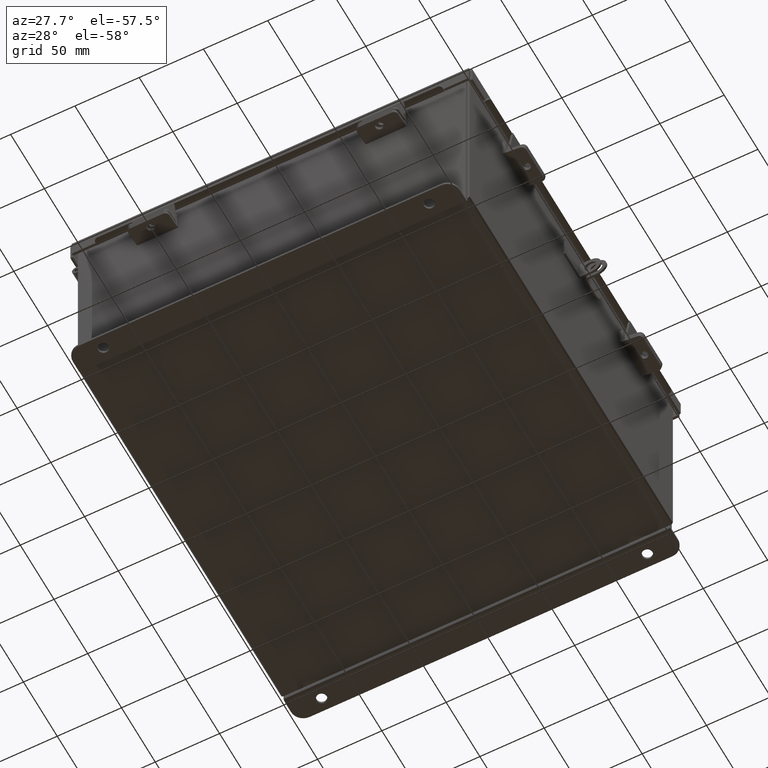
[diagram: clean part render]
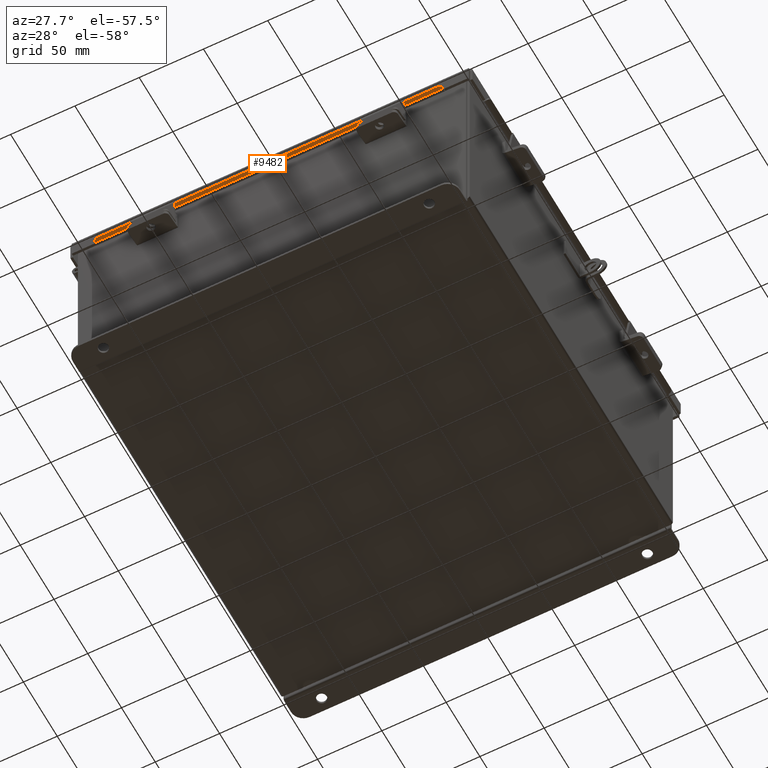
[diagram: same view with one face highlighted and labeled with its STEP entity id]
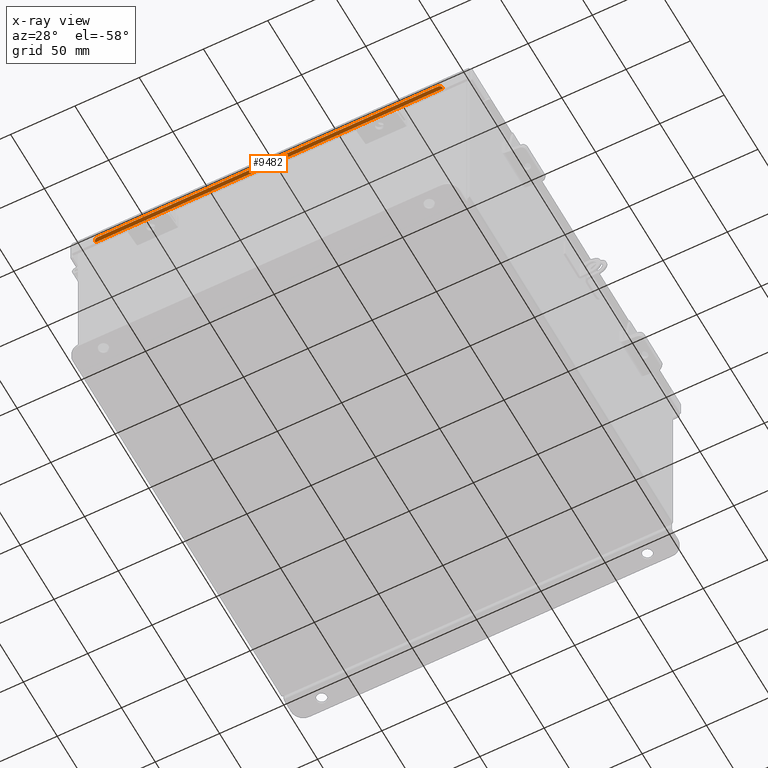
[diagram: x-ray of the same camera — body ghosted, the highlighted face saturated]
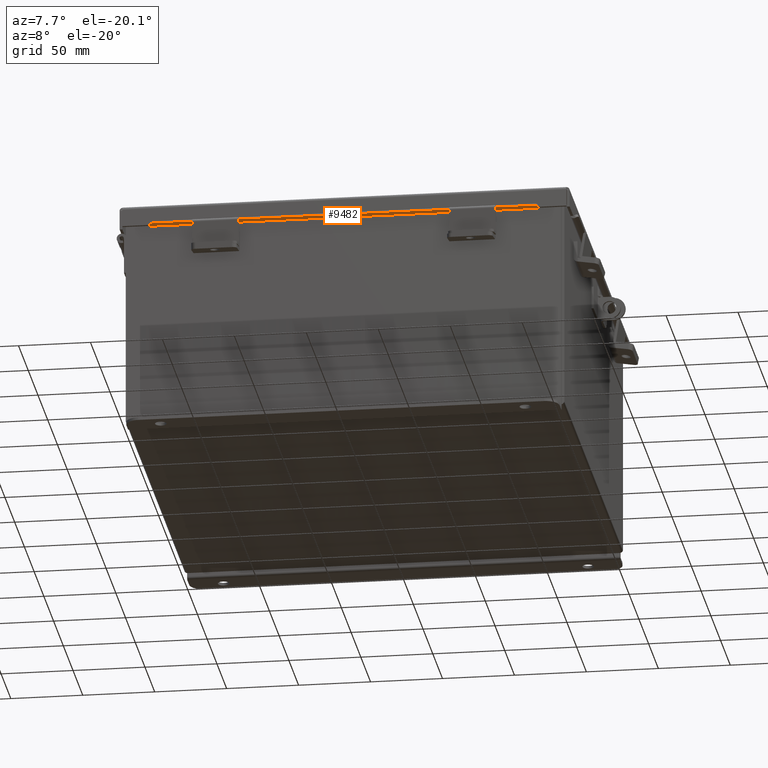
[diagram: same view with one face highlighted and labeled with its STEP entity id]
A machine part, auxiliary view. The second image highlights one B-rep face of the part: STEP entity #9482.
The next image is the same camera in x-ray: the body ghosted, the highlighted face saturated — about 0% of this face is hidden behind the body in this view.
A second angle (auxiliary view) of the same face is appended — the face is thin or edge-on in the first view.
In plain terms, the highlighted planar face has unit normal (-0, 0.5, 0.866).
Its self-contained STEP definition (entity closure, byte-faithful):
#93 = CARTESIAN_POINT ( 'NONE',  ( 5.224478932188133300, -6.298056350946112900, 0.4916841953253935400 ) ) ;
#153 = VECTOR ( 'NONE', #4758, 39.37007874015748900 ) ;
#279 = LINE ( 'NONE', #1236, #16996 ) ;
#314 = CARTESIAN_POINT ( 'NONE',  ( -5.324478932188134700, -6.207100000000004900, 0.5441978690286369800 ) ) ;
#856 = EDGE_CURVE ( 'NONE', #10894, #8749, #976, .T. ) ;
#976 = LINE ( 'NONE', #2634, #153 ) ;
#1031 = CARTESIAN_POINT ( 'NONE',  ( 5.324478932188133000, -6.211453810567669500, 0.5416841953253935800 ) ) ;
#1121 = DIRECTION ( 'NONE',  ( 2.909060459240741300E-017, -0.5000000000000038900, 0.8660254037844364900 ) ) ;
#1236 = CARTESIAN_POINT ( 'NONE',  ( 1.021848359461302800E-016, -6.207100000000004100, 0.5441978690286373200 ) ) ;
#1242 = DIRECTION ( 'NONE',  ( 0.0000000000000000000, 0.8660254037844362700, 0.5000000000000037700 ) ) ;
#2043 = CIRCLE ( 'NONE', #6308, 0.09999999999999997800 ) ;
#2236 = AXIS2_PLACEMENT_3D ( 'NONE', #9229, #1121, #10596 ) ;
#2634 = CARTESIAN_POINT ( 'NONE',  ( -5.324478932188133000, -6.298056350946112900, 0.4916841953253935400 ) ) ;
#3055 = EDGE_CURVE ( 'NONE', #10894, #13770, #279, .T. ) ;
#3178 = CIRCLE ( 'NONE', #2236, 0.09999999999999997800 ) ;
#3252 = EDGE_CURVE ( 'NONE', #7396, #6619, #11285, .T. ) ;
#4077 = VECTOR ( 'NONE', #8391, 39.37007874015748100 ) ;
#4357 = VECTOR ( 'NONE', #7446, 39.37007874015748100 ) ;
#4758 = DIRECTION ( 'NONE',  ( 9.059668427480828900E-015, -0.8660254037844362700, -0.5000000000000037700 ) ) ;
#6308 = AXIS2_PLACEMENT_3D ( 'NONE', #15207, #7066, #16564 ) ;
#6488 = FACE_OUTER_BOUND ( 'NONE', #12412, .T. ) ;
#6619 = VERTEX_POINT ( 'NONE', #93 ) ;
#6956 = ORIENTED_EDGE ( 'NONE', *, *, #3055, .F. ) ;
#7066 = DIRECTION ( 'NONE',  ( 2.909060459240741300E-017, -0.5000000000000038900, 0.8660254037844364900 ) ) ;
#7284 = ORIENTED_EDGE ( 'NONE', *, *, #856, .T. ) ;
#7396 = VERTEX_POINT ( 'NONE', #9705 ) ;
#7431 = EDGE_CURVE ( 'NONE', #6619, #8097, #2043, .T. ) ;
#7446 = DIRECTION ( 'NONE',  ( -0.0000000000000000000, 0.8660254037844377100, 0.5000000000000016700 ) ) ;
#7971 = PLANE ( 'NONE',  #12159 ) ;
#8051 = CARTESIAN_POINT ( 'NONE',  ( 5.324478932188133000, -6.207099999999999600, 0.5441978690286383100 ) ) ;
#8097 = VERTEX_POINT ( 'NONE', #1031 ) ;
#8391 = DIRECTION ( 'NONE',  ( 1.000000000000000000, -0.0000000000000000000, -0.0000000000000000000 ) ) ;
#8564 = EDGE_CURVE ( 'NONE', #8097, #13770, #9218, .T. ) ;
#8749 = VERTEX_POINT ( 'NONE', #16007 ) ;
#8929 = ORIENTED_EDGE ( 'NONE', *, *, #7431, .T. ) ;
#9218 = LINE ( 'NONE', #12871, #4357 ) ;
#9229 = CARTESIAN_POINT ( 'NONE',  ( -5.224478932188133300, -6.211453810567669500, 0.5416841953253942500 ) ) ;
#9347 = DIRECTION ( 'NONE',  ( -2.909060459240741900E-017, 0.5000000000000038900, -0.8660254037844364900 ) ) ;
#9482 = ADVANCED_FACE ( 'NONE', ( #6488 ), #7971, .F. ) ;
#9705 = CARTESIAN_POINT ( 'NONE',  ( -5.224478932188133300, -6.298056350946112900, 0.4916841953253935400 ) ) ;
#10129 = ORIENTED_EDGE ( 'NONE', *, *, #8564, .T. ) ;
#10449 = ORIENTED_EDGE ( 'NONE', *, *, #3252, .T. ) ;
#10596 = DIRECTION ( 'NONE',  ( 0.0000000000000000000, 0.8660254037844360400, 0.5000000000000043300 ) ) ;
#10894 = VERTEX_POINT ( 'NONE', #314 ) ;
#11255 = ORIENTED_EDGE ( 'NONE', *, *, #15266, .T. ) ;
#11285 = LINE ( 'NONE', #16503, #4077 ) ;
#12159 = AXIS2_PLACEMENT_3D ( 'NONE', #17467, #9347, #1242 ) ;
#12412 = EDGE_LOOP ( 'NONE', ( #10449, #8929, #10129, #6956, #7284, #11255 ) ) ;
#12871 = CARTESIAN_POINT ( 'NONE',  ( 5.324478932188133000, -6.193600000000003500, 0.5519920976626964100 ) ) ;
#13770 = VERTEX_POINT ( 'NONE', #8051 ) ;
#14794 = DIRECTION ( 'NONE',  ( 1.000000000000000000, 1.454530229620382000E-017, -2.519320258847300500E-017 ) ) ;
#15207 = CARTESIAN_POINT ( 'NONE',  ( 5.224478932188133300, -6.211453810567669500, 0.5416841953253936900 ) ) ;
#15266 = EDGE_CURVE ( 'NONE', #8749, #7396, #3178, .T. ) ;
#16007 = CARTESIAN_POINT ( 'NONE',  ( -5.324478932188134700, -6.211453810567671300, 0.5416841953253932500 ) ) ;
#16503 = CARTESIAN_POINT ( 'NONE',  ( 5.324478932188133000, -6.298056350946112900, 0.4916841953253935400 ) ) ;
#16564 = DIRECTION ( 'NONE',  ( 0.0000000000000000000, 0.8660254037844360400, 0.5000000000000043300 ) ) ;
#16996 = VECTOR ( 'NONE', #14794, 39.37007874015748100 ) ;
#17467 = CARTESIAN_POINT ( 'NONE',  ( 1.021848359461302700E-016, -1.787419589632104100, 3.095901543686685500 ) ) ;